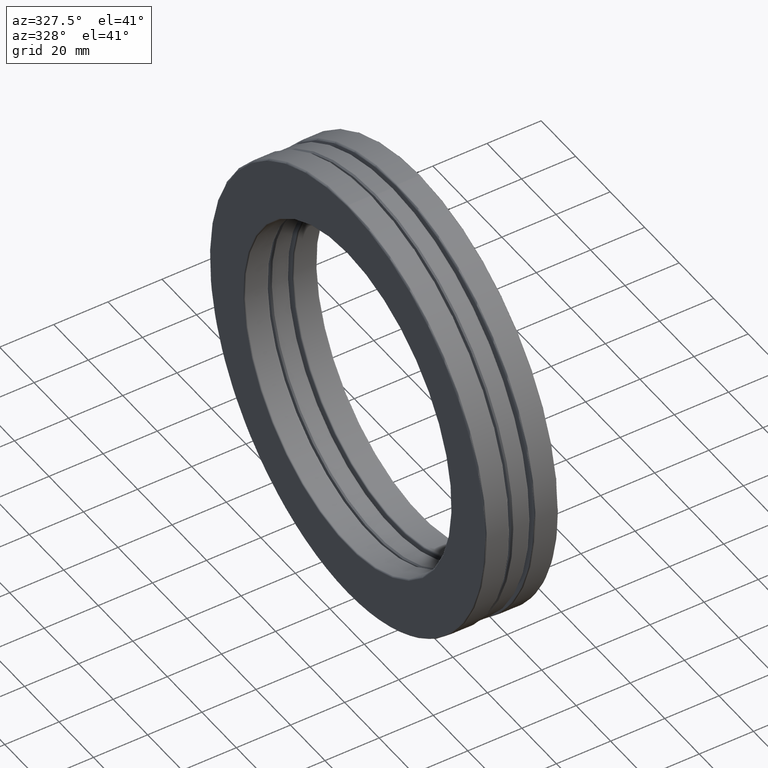
[diagram: clean part render]
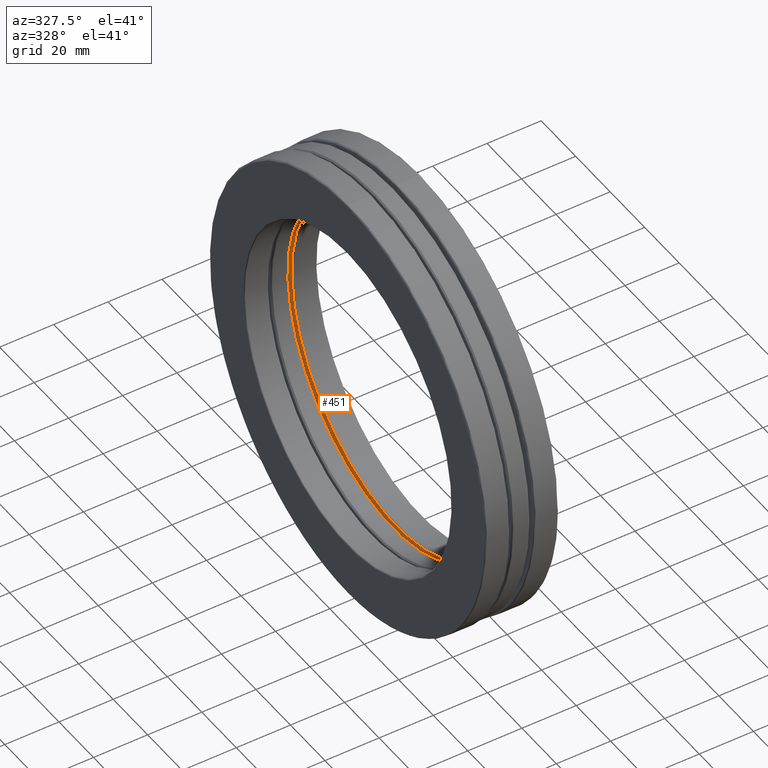
[diagram: same view with one face highlighted and labeled with its STEP entity id]
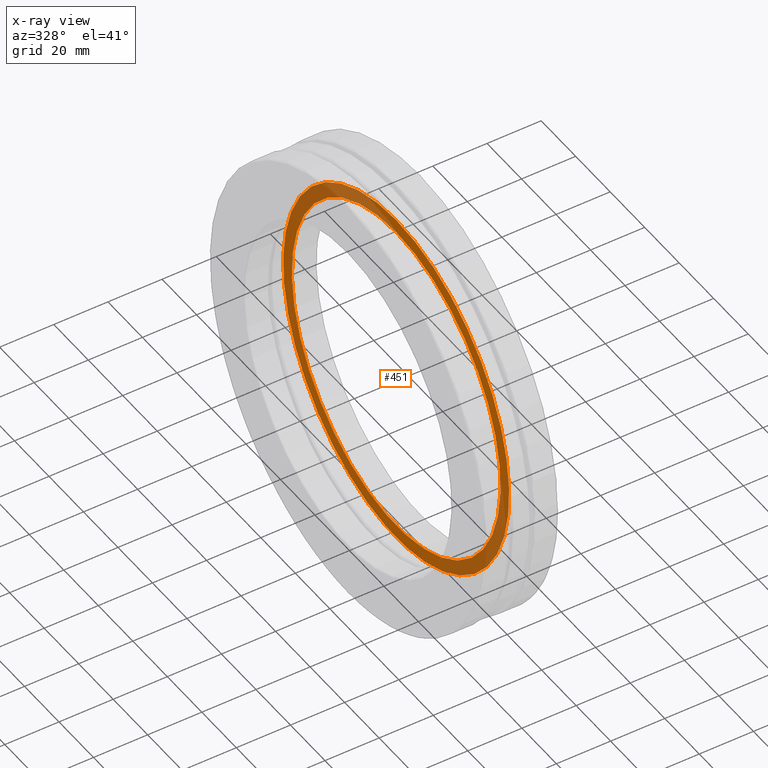
[diagram: x-ray of the same camera — body ghosted, the highlighted face saturated]
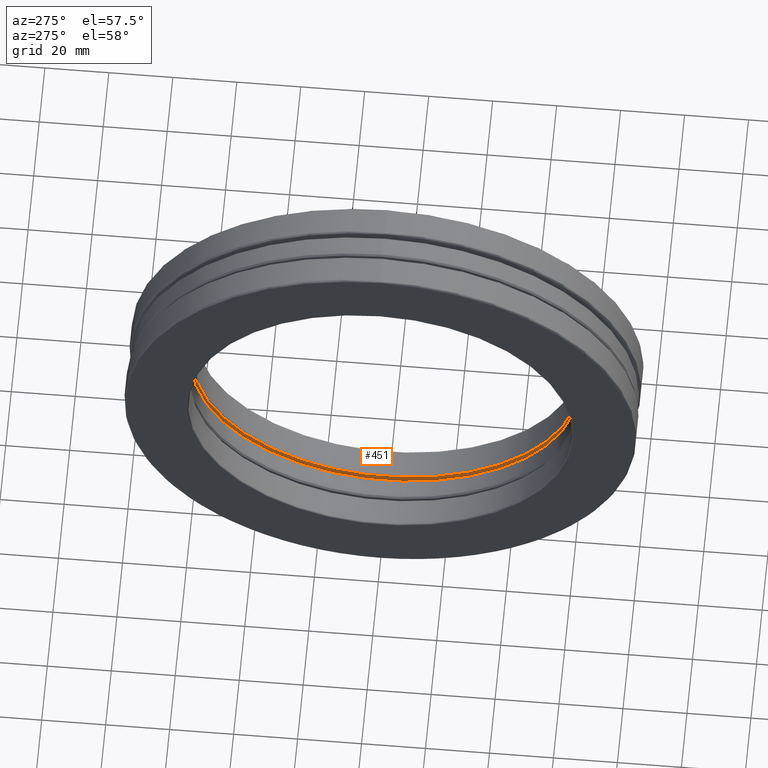
[diagram: same view with one face highlighted and labeled with its STEP entity id]
A machine part, auxiliary view. The second image highlights one B-rep face of the part: STEP entity #451.
The next image is the same camera in x-ray: the body ghosted, the highlighted face saturated — about 34% of this face is hidden behind the body in this view.
A second angle (auxiliary view) of the same face is appended — the face is thin or edge-on in the first view.
In plain terms, the highlighted planar face has unit normal (1, 0, 0).
Its self-contained STEP definition (entity closure, byte-faithful):
#30 = ORIENTED_EDGE ( 'NONE', *, *, #450, .T. ) ;
#34 = EDGE_CURVE ( 'NONE', #333, #333, #456, .T. ) ;
#47 = CARTESIAN_POINT ( 'NONE',  ( 0.1771702100000012400, 0.0000000000000000000, 0.0000000000000000000 ) ) ;
#53 = DIRECTION ( 'NONE',  ( -1.000000000000000000, -0.0000000000000000000, -0.0000000000000000000 ) ) ;
#84 = AXIS2_PLACEMENT_3D ( 'NONE', #441, #53, #436 ) ;
#170 = AXIS2_PLACEMENT_3D ( 'NONE', #47, #432, #610 ) ;
#200 = DIRECTION ( 'NONE',  ( -1.000000000000000000, -0.0000000000000000000, -0.0000000000000000000 ) ) ;
#305 = FACE_BOUND ( 'NONE', #439, .T. ) ;
#316 = VERTEX_POINT ( 'NONE', #414 ) ;
#330 = DIRECTION ( 'NONE',  ( 0.0000000000000000000, 0.0000000000000000000, 1.000000000000000000 ) ) ;
#333 = VERTEX_POINT ( 'NONE', #573 ) ;
#379 = CARTESIAN_POINT ( 'NONE',  ( 0.1771702100000012400, 0.0000000000000000000, 0.0000000000000000000 ) ) ;
#414 = CARTESIAN_POINT ( 'NONE',  ( 0.1771702100000012400, 0.0000000000000000000, 2.579367697348755200 ) ) ;
#432 = DIRECTION ( 'NONE',  ( 1.000000000000000000, 0.0000000000000000000, 0.0000000000000000000 ) ) ;
#436 = DIRECTION ( 'NONE',  ( 0.0000000000000000000, 0.0000000000000000000, 1.000000000000000000 ) ) ;
#439 = EDGE_LOOP ( 'NONE', ( #668 ) ) ;
#441 = CARTESIAN_POINT ( 'NONE',  ( 0.1771702100000012400, 0.0000000000000000000, 0.0000000000000000000 ) ) ;
#450 = EDGE_CURVE ( 'NONE', #316, #316, #790, .T. ) ;
#451 = ADVANCED_FACE ( 'NONE', ( #305, #599 ), #496, .F. ) ;
#456 = CIRCLE ( 'NONE', #761, 2.381999999999999700 ) ;
#496 = PLANE ( 'NONE',  #170 ) ;
#573 = CARTESIAN_POINT ( 'NONE',  ( 0.1771702100000012400, 0.0000000000000000000, 2.381999999999999700 ) ) ;
#599 = FACE_OUTER_BOUND ( 'NONE', #750, .T. ) ;
#610 = DIRECTION ( 'NONE',  ( 0.0000000000000000000, 0.0000000000000000000, -1.000000000000000000 ) ) ;
#668 = ORIENTED_EDGE ( 'NONE', *, *, #34, .F. ) ;
#750 = EDGE_LOOP ( 'NONE', ( #30 ) ) ;
#761 = AXIS2_PLACEMENT_3D ( 'NONE', #379, #200, #330 ) ;
#790 = CIRCLE ( 'NONE', #84, 2.579367697348755200 ) ;